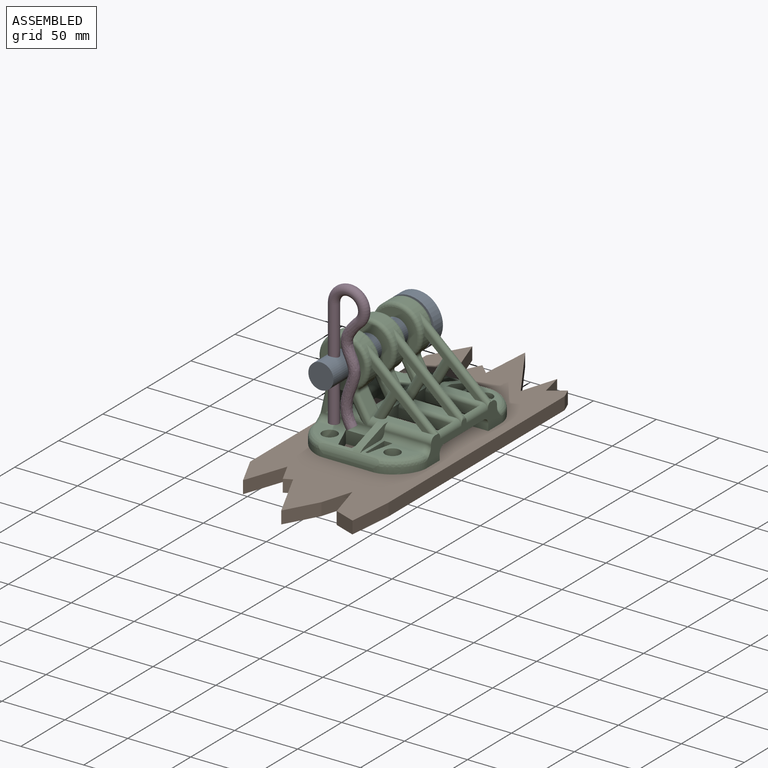
[diagram: assembled view]
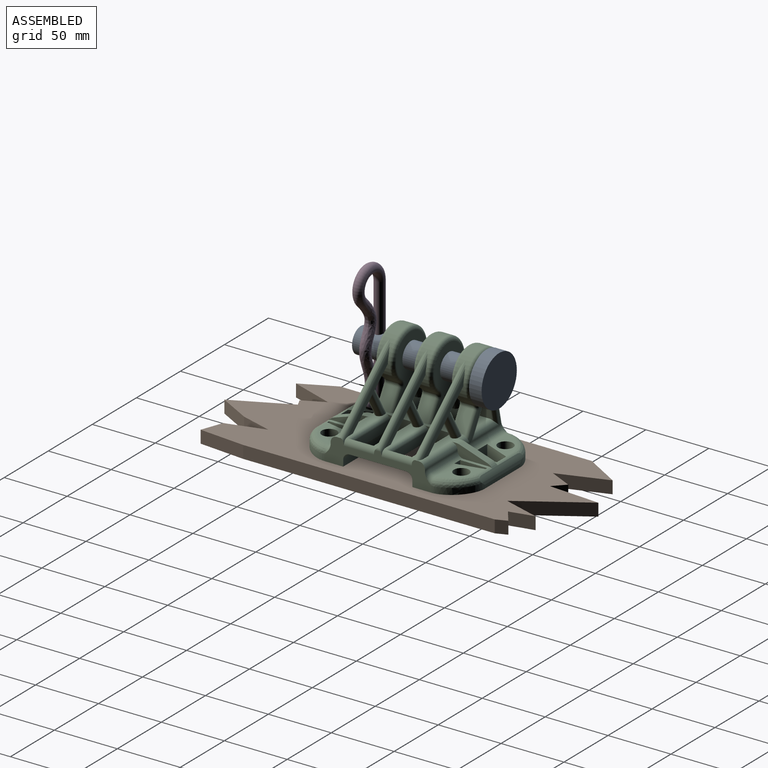
[diagram: assembled view, second angle]
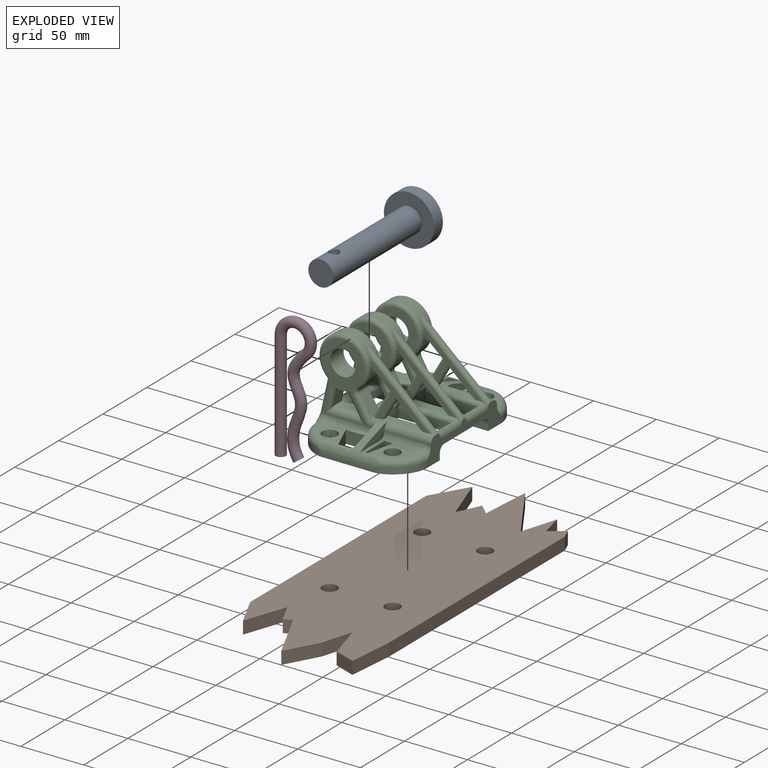
[diagram: exploded view]
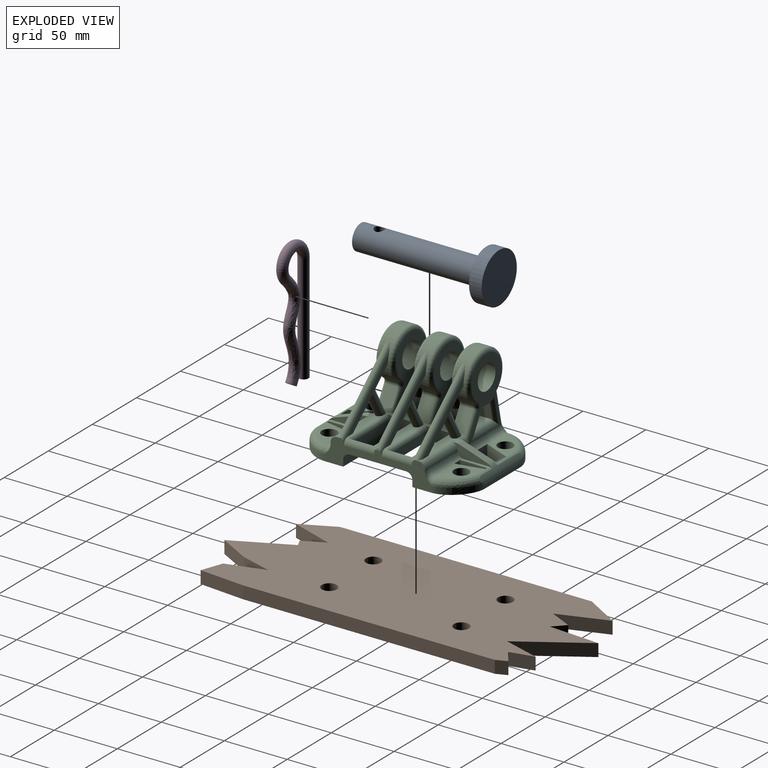
[diagram: exploded view, second angle]
ASSEMBLY  parts=4 mates=6
PART A: 6 faces, bbox 110x40x40 mm
  f0: plane 20x20mm, normal (1,0,0), area 314.2mm2, adj f1
  f1: cylinder r=10mm len=100mm, axis (1,0,0), area 6180.5mm2, adj f0,f2,f5
  f2: plane 40x40mm, normal (1,0,0), area 942.5mm2, adj f1,f3
  f3: cylinder r=20mm len=40mm, axis (1,0,0), area 1256.6mm2, adj f2,f4
  f4: plane 40x40mm, normal (-1,0,0), area 1256.6mm2, adj f3
  f5: cylinder r=4mm len=20mm, axis (0,-1,0), area 481.9mm2, adj f1
PART B: 28 faces, bbox 110x290.6x10 mm
  f0: plane 36.19x10mm, normal (1,-0.09,0), area 363.4mm2, adj f1,f21,f22,f23
  f1: plane 200x10mm, normal (1,0,0), area 2000mm2, adj f0,f2,f22,f23
  f2: plane 10x8.43mm, normal (0.93,0.37,0), area 90.6mm2, adj f1,f3,f22,f23
  f3: plane 11.59x10mm, normal (-0.59,0.81,0), area 143.3mm2, adj f2,f4,f22,f23
  f4: plane 18.94x10mm, normal (0.97,0.22,0), area 194.3mm2, adj f3,f5,f22,f23
  f5: plane 28.75x10mm, normal (-0.96,0.29,0), area 300.7mm2, adj f4,f6,f22,f23
  f6: plane 50.28x31.67mm, normal (0.85,0.53,0), area 594.2mm2, adj f5,f7,f22,f23
  f7: plane 40.47x10mm, normal (-1,0.07,0), area 405.7mm2, adj f6,f8,f22,f23
  f8: plane 10x8.71mm, normal (0.7,0.72,0), area 121.2mm2, adj f7,f9,f22,f23
  f9: plane 18.24x10mm, normal (-0.9,0.43,0), area 202.4mm2, adj f8,f10,f22,f23
  f10: plane 38.19x13.21mm, normal (0.95,0.33,0), area 404.1mm2, adj f9,f11,f22,f23
  f11: plane 28.38x16.69mm, normal (-0.86,0.51,0), area 329.2mm2, adj f10,f12,f22,f23
  f12: plane 200x10mm, normal (-1,0,0), area 2000mm2, adj f11,f13,f22,f23
  f13: plane 26.18x12.67mm, normal (-0.9,-0.44,0), area 290.8mm2, adj f12,f14,f22,f23
  f14: plane 33.68x11.65mm, normal (0.95,-0.33,0), area 356.4mm2, adj f13,f15,f22,f23
  f15: plane 16.94x10mm, normal (-0.9,-0.44,0), area 188.1mm2, adj f14,f16,f22,f23
  f16: plane 10x6.15mm, normal (0.44,-0.9,0), area 68.3mm2, adj f15,f17,f22,f23
  f17: plane 43.67x21.14mm, normal (-0.9,-0.44,0), area 485.1mm2, adj f16,f18,f22,f23
  f18: plane 25.59x14.14mm, normal (0.88,-0.48,0), area 292.4mm2, adj f17,f19,f22,f23
  f19: plane 24.54x10mm, normal (0.96,-0.29,0), area 256.2mm2, adj f18,f20,f22,f23
  f20: plane 30.02x10mm, normal (-0.96,-0.27,0), area 312mm2, adj f19,f21,f22,f23
  f21: plane 16.87x10mm, normal (-0.34,-0.94,0), area 179.6mm2, adj f0,f20,f22,f23
  f22: plane 290.6x110mm, normal (0,0,1), area 24919.5mm2, adj f0,f1,f2,f3,f4,f5,f6,f7
  f23: plane 290.6x110mm, normal (0,0,-1), area 24919.5mm2, adj f0,f1,f2,f3,f4,f5,f6,f7
  f24: cylinder r=6mm len=12mm, axis (0,0,1), area 377mm2, adj f22,f23
  f25: cylinder r=6mm len=12mm, axis (0,0,1), area 377mm2, adj f22,f23
  f26: cylinder r=6mm len=12mm, axis (0,0,1), area 377mm2, adj f22,f23
  f27: cylinder r=6mm len=12mm, axis (0,0,1), area 377mm2, adj f22,f23
PART C: 338 faces, bbox 138.5x112.8x80.6 mm
  f0: plane 92.61x42.61mm, normal (0,0,-1), area 2325mm2, adj f25,f39,f40,f41,f48,f49,f64,f65
  f1: plane 1.11x0.13mm, normal (-1,0,0), area 0mm2, adj f41,f137,f195
  f2: plane 46.35x40.82mm, normal (1,0,0), area 251.8mm2, adj f7,f14,f86,f89,f136,f190,f193,f196
  f3: plane 1.11x0.13mm, normal (-1,0,0), area 0mm2, adj f41,f136,f197
  f4: plane 46.35x40.82mm, normal (1,0,0), area 251.8mm2, adj f7,f13,f85,f90,f137,f189,f192,f197
  f5: plane 20x2.35mm, normal (0,0,1), area 47.1mm2, adj f46,f71,f110,f128
  f6: plane 28.9x20mm, normal (0,0,1), area 277mm2, adj f58,f79,f114,f115,f125
  f7: plane 75.22x55.66mm, normal (0,0,1), area 1086.1mm2, adj f2,f4,f16,f17,f27,f31,f45,f46
  f8: plane 21.54x7.51mm, normal (0,0,1), area 160.8mm2, adj f18,f22,f127,f134,f177,f178
  f9: plane 15.31x1.57mm, normal (0,0,1), area 23.7mm2, adj f101,f102,f130,f132,f177,f179
  f10: plane 15.31x1.57mm, normal (0,0,1), area 23.7mm2, adj f99,f100,f131,f132,f181,f183
  f11: plane 27.4x20mm, normal (0,0,1), area 285.4mm2, adj f49,f65,f108,f109,f122
  f12: plane 20x2.61mm, normal (0,0,1), area 52.2mm2, adj f55,f73,f112,f119
  f13: cylinder r=20mm len=40mm, axis (-1,0,0), area 814.7mm2, adj f4,f27,f85,f94,f161,f164,f168,f197
  f14: cylinder r=20mm len=40mm, axis (-1,0,0), area 814.7mm2, adj f2,f29,f86,f94,f141,f144,f147,f196
  f15: cylinder r=10mm len=20mm, axis (-1,0,0), area 942.5mm2, adj f36,f101
  f16: plane 15.89x9.36mm, normal (0,-0.87,0.5), area 157.8mm2, adj f7,f139,f142,f144,f145,f190
  f17: plane 15.14x9mm, normal (0,-0.87,0.5), area 157.4mm2, adj f7,f162,f164,f165
  f18: plane 16.56x9.05mm, normal (0,-0.98,-0.22), area 148.7mm2, adj f8,f20,f127,f177,f185
  f19: plane 16.52x9mm, normal (0,-0.98,-0.22), area 152.3mm2, adj f21,f132,f179,f183
  f20: cylinder r=20mm len=15.01mm, axis (1,0,0), area 157.3mm2, adj f18,f22,f36,f101,f177,f178,f185,f186
  f21: cylinder r=20mm len=15.01mm, axis (1,0,0), area 157.3mm2, adj f19,f23,f100,f102,f179,f180,f183,f184
  f22: plane 15.7x9.12mm, normal (0,0.87,-0.5), area 157.9mm2, adj f8,f20,f127,f178,f186
  f23: plane 15.35x9mm, normal (0,0.87,-0.5), area 159.6mm2, adj f21,f135,f180,f184
  f24: plane 90x45mm, normal (0,0,-1), area 2085.9mm2, adj f41,f61,f62,f63,f81,f82,f83,f94
  f25: plane 20.67x10.67mm, normal (0,1,0), area 142.9mm2, adj f0,f40,f94,f106,f117,f129,f149
  f26: plane 1.11x0.13mm, normal (1,0,0), area 0mm2, adj f41,f137,f197
  f27: plane 46.35x40.82mm, normal (-1,0,0), area 251.8mm2, adj f7,f13,f85,f90,f136,f189,f192,f197
  f28: plane 1.11x0.13mm, normal (1,0,0), area 0mm2, adj f41,f136,f196
  f29: plane 46.35x40.82mm, normal (-1,0,0), area 251.9mm2, adj f14,f86,f89,f121,f139,f190,f193,f196
  f30: plane 46.35x40.82mm, normal (1,0,0), area 251.9mm2, adj f43,f84,f87,f118,f138,f191,f194,f195
  f31: plane 46.35x40.82mm, normal (-1,0,0), area 251.8mm2, adj f7,f43,f84,f87,f137,f191,f194,f195
  f32: plane 21.54x7.51mm, normal (0,0,1), area 160.8mm2, adj f91,f93,f124,f133,f181,f182
  f33: plane 20x2.35mm, normal (0,0,1), area 47.1mm2, adj f56,f77,f115,f125
  f34: plane 92.61x42.61mm, normal (0,0,-1), area 2652mm2, adj f41,f42,f53,f54,f58,f59,f72,f73
  f35: plane 20x2.61mm, normal (0,0,1), area 52.2mm2, adj f45,f67,f108,f122
  f36: plane 57.03x44mm, normal (-1,0,0), area 724.9mm2, adj f15,f20,f46,f128,f129,f139,f145,f146
  f37: plane 28.9x20mm, normal (0,0,1), area 277mm2, adj f48,f69,f110,f111,f128
  f38: plane 5x1.34mm, normal (-1,0,0), area 2.2mm2, adj f41,f121,f123
  f39: plane 40x2.79mm, normal (-1,0,0), area 111.7mm2, adj f0,f106,f107,f201
  f40: plane 90x5mm, normal (1,0,0), area 450mm2, adj f0,f25,f41,f117
  f41: plane 86.86x21.86mm, normal (0,-1,0), area 775mm2, adj f0,f1,f3,f24,f26,f28,f34,f38
  f42: plane 20.67x10.67mm, normal (0,1,0), area 142.9mm2, adj f34,f54,f94,f104,f116,f126,f150
  f43: cylinder r=20mm len=40mm, axis (-1,0,0), area 814.7mm2, adj f30,f31,f87,f94,f152,f155,f159,f195
  f44: cylinder r=10mm len=20mm, axis (-1,0,0), area 942.5mm2, adj f50,f99
  f45: plane 32.64x10.75mm, normal (0,-1,0), area 147.5mm2, adj f7,f35,f47,f108,f121,f122,f201,f202
  f46: plane 32.14x10.75mm, normal (0,1,0), area 147.4mm2, adj f5,f7,f36,f47,f110,f128,f139,f201
  f47: plane 21.62x7.21mm, normal (-0.32,0,0.95), area 136.8mm2, adj f45,f46,f201,f202
  f48: cylinder r=6mm len=12mm, axis (0,0,1), area 377mm2, adj f0,f37
  f49: cylinder r=6mm len=12mm, axis (0,0,1), area 377mm2, adj f0,f11
  f50: plane 57.03x44mm, normal (1,0,0), area 724.9mm2, adj f44,f56,f92,f125,f126,f138,f151,f152
  f51: plane 5x1.34mm, normal (1,0,0), area 2.2mm2, adj f41,f118,f120
  f52: plane 27.4x20mm, normal (0,0,1), area 285.4mm2, adj f59,f75,f112,f113,f119
  f53: plane 40x2.79mm, normal (1,0,0), area 111.7mm2, adj f34,f104,f105,f200
  f54: plane 90x5mm, normal (-1,0,0), area 450mm2, adj f34,f41,f42,f116
  f55: plane 32.64x10.75mm, normal (0,-1,0), area 147.5mm2, adj f7,f12,f57,f112,f118,f119,f199,f200
  f56: plane 32.14x10.75mm, normal (0,1,0), area 147.4mm2, adj f7,f33,f50,f57,f115,f125,f138,f199
  f57: plane 21.62x7.21mm, normal (0.32,0,0.95), area 136.8mm2, adj f55,f56,f199,f200
  f58: cylinder r=6mm len=12mm, axis (0,0,1), area 377mm2, adj f6,f34
  f59: cylinder r=6mm len=12mm, axis (0,0,1), area 377mm2, adj f34,f52
  f60: plane 44.08x7.09mm, normal (1,0,0), area 311.6mm2, adj f61,f63,f117,f175,f176
  f61: plane 22.39x9.72mm, normal (0,1,0), area 162.3mm2, adj f24,f60,f62,f117,f136,f174,f176
  f62: plane 44.08x7mm, normal (-1,0,0), area 307.9mm2, adj f24,f61,f63,f173,f174
  f63: plane 22.39x10.09mm, normal (0,-1,0), area 167.8mm2, adj f7,f24,f60,f62,f117,f173,f175
  f64: plane 9.99x1.92mm, normal (1,0,0), area 19.1mm2, adj f0,f65,f67,f108
  f65: plane 21.34x10.1mm, normal (0.22,0.98,0), area 218.5mm2, adj f0,f11,f64,f66,f108,f122
  f66: plane 10.1x6.62mm, normal (-1,0,0), area 66.8mm2, adj f0,f65,f67,f122
  f67: plane 21.34x10.1mm, normal (0,-1,0), area 213.4mm2, adj f0,f35,f64,f66,f108,f122
  f68: plane 19.3x10.05mm, normal (-1,0,0), area 194mm2, adj f0,f69,f71,f128
  f69: plane 21.07x10.06mm, normal (0.38,-0.92,0), area 228mm2, adj f0,f37,f68,f70,f110,f128
  f70: plane 10.6x9.99mm, normal (1,0,0), area 105.9mm2, adj f0,f69,f71,f110
  f71: plane 21.07x10.05mm, normal (0,1,0), area 210.7mm2, adj f0,f5,f68,f70,f110,f128
  f72: plane 9.99x1.92mm, normal (-1,0,0), area 19.1mm2, adj f34,f73,f75,f112
  f73: plane 21.34x10.1mm, normal (0,-1,0), area 213.4mm2, adj f12,f34,f72,f74,f112,f119
  f74: plane 10.1x6.62mm, normal (1,0,0), area 66.8mm2, adj f34,f73,f75,f119
  f75: plane 21.34x10.1mm, normal (-0.22,0.98,0), area 218.5mm2, adj f34,f52,f72,f74,f112,f119
  f76: plane 19.3x10.05mm, normal (1,0,0), area 194mm2, adj f34,f77,f79,f125
  f77: plane 21.07x10.05mm, normal (0,1,0), area 210.7mm2, adj f33,f34,f76,f78,f115,f125
  f78: plane 10.6x9.99mm, normal (-1,0,0), area 105.9mm2, adj f34,f77,f79,f115
  f79: plane 21.07x10.06mm, normal (-0.38,-0.92,0), area 228mm2, adj f6,f34,f76,f78,f115,f125
  f80: plane 44.08x7.09mm, normal (-1,0,0), area 311.6mm2, adj f81,f83,f116,f171,f172
  f81: plane 22.39x10.09mm, normal (0,-1,0), area 167.8mm2, adj f7,f24,f80,f82,f116,f169,f171
  f82: plane 44.08x7mm, normal (1,0,0), area 307.9mm2, adj f24,f81,f83,f169,f170
  f83: plane 22.39x9.72mm, normal (0,1,0), area 162.3mm2, adj f24,f80,f82,f116,f137,f170,f172
  f84: plane 24.13x21.4mm, normal (0,0.66,-0.75), area 168.7mm2, adj f7,f30,f31,f118,f194
  f85: plane 16.9x15.03mm, normal (0,0.66,-0.75), area 111mm2, adj f4,f13,f27,f189
  f86: plane 15.69x13.82mm, normal (0,0.66,-0.75), area 111mm2, adj f2,f14,f29,f190
  f87: plane 15.69x13.82mm, normal (0,0.66,-0.75), area 111mm2, adj f30,f31,f43,f191
  f88: plane 15.89x9.36mm, normal (0,-0.87,0.5), area 157.8mm2, adj f7,f138,f153,f155,f156,f191
  f89: plane 24.13x21.4mm, normal (0,0.66,-0.75), area 168.7mm2, adj f2,f7,f29,f121,f193
  f90: plane 24.11x21.37mm, normal (0,0.66,-0.75), area 168.7mm2, adj f4,f7,f27,f192
  f91: plane 16.56x9.05mm, normal (0,-0.98,-0.22), area 148.7mm2, adj f32,f92,f124,f181,f187
  f92: cylinder r=20mm len=15.01mm, axis (1,0,0), area 157.3mm2, adj f50,f91,f93,f99,f181,f182,f187,f188
  f93: plane 15.7x9.12mm, normal (0,0.87,-0.5), area 157.9mm2, adj f32,f92,f124,f182,f188
  f94: plane 72.82x30.09mm, normal (0,0.98,0.22), area 1101mm2, adj f13,f14,f24,f25,f42,f43,f130,f131
  f95: plane 40x5mm, normal (0,1,0), area 200mm2, adj f24,f96,f98,f135
  f96: plane 15x5mm, normal (1,0,0), area 75mm2, adj f24,f95,f97,f134
  f97: plane 40x5mm, normal (0,-1,0), area 200mm2, adj f24,f96,f98,f132
  f98: plane 15x5mm, normal (-1,0,0), area 75mm2, adj f24,f95,f97,f133
  f99: plane 52.09x34mm, normal (-1,0,0), area 708.4mm2, adj f7,f10,f44,f92,f131,f156,f157,f158
  f100: plane 52.09x34mm, normal (1,0,0), area 708.4mm2, adj f7,f10,f21,f103,f131,f160,f161,f162
  f101: plane 52.09x34mm, normal (1,0,0), area 708.4mm2, adj f7,f9,f15,f20,f130,f140,f141,f142
  f102: plane 52.09x34mm, normal (-1,0,0), area 708.4mm2, adj f7,f9,f21,f103,f130,f165,f166,f167
  f103: cylinder r=10mm len=20mm, axis (-1,0,0), area 942.5mm2, adj f100,f102
  f104: bspline ~25x25mm, area 188.9mm2, adj f34,f42,f53,f114,f200
  f105: bspline ~25x25mm, area 188.9mm2, adj f34,f41,f53,f113,f200
  f106: bspline ~25x25mm, area 188.9mm2, adj f0,f25,f39,f111,f201
  f107: bspline ~25x25mm, area 188.9mm2, adj f0,f39,f41,f109,f201
  f108: cylinder r=5mm len=12mm, axis (0,1,0), area 32.7mm2, adj f11,f35,f45,f64,f65,f67,f109,f201
  f109: bspline ~31.33x31.33mm, area 261.9mm2, adj f11,f107,f108,f123,f201
  f110: cylinder r=5mm len=22mm, axis (0,1,0), area 57.5mm2, adj f5,f37,f46,f69,f70,f71,f111,f201
  f111: bspline ~31.33x31.33mm, area 259.9mm2, adj f37,f106,f110,f129,f201
  f112: cylinder r=5mm len=12mm, axis (0,1,0), area 32.7mm2, adj f12,f52,f55,f72,f73,f75,f113,f200
  f113: bspline ~31.33x31.33mm, area 259.9mm2, adj f52,f105,f112,f120,f200
  f114: bspline ~31.33x27mm, area 261.9mm2, adj f6,f104,f115,f126,f200
  f115: cylinder r=5mm len=22mm, axis (0,1,0), area 57.5mm2, adj f6,f33,f56,f77,f78,f79,f114,f200
  f116: cylinder r=5mm len=90mm, axis (0,-1,0), area 666.2mm2, adj f24,f41,f42,f54,f80,f81,f83
  f117: cylinder r=5mm len=90mm, axis (0,-1,0), area 666.2mm2, adj f24,f25,f40,f41,f60,f61,f63
  f118: cylinder r=5mm len=37mm, axis (0,1,0), area 288.2mm2, adj f7,f30,f41,f51,f55,f84,f119,f195
  f119: cylinder r=5mm len=32mm, axis (0,-1,0), area 244.8mm2, adj f12,f52,f55,f73,f74,f75,f118,f120
  f120: torus R=10mm, axis (1,0,0), area 52.5mm2, adj f41,f51,f113,f119
  f121: cylinder r=5mm len=37mm, axis (0,1,0), area 288.2mm2, adj f7,f29,f38,f41,f45,f89,f122,f196
  f122: cylinder r=5mm len=32mm, axis (0,-1,0), area 244.8mm2, adj f11,f35,f45,f65,f66,f67,f121,f123
  f123: torus R=10mm, axis (-1,0,0), area 52.5mm2, adj f38,f41,f109,f122
  f124: cylinder r=5mm len=31.97mm, axis (0,-1,0), area 200.2mm2, adj f32,f91,f93,f125,f187,f188
  f125: cylinder r=5mm len=42mm, axis (0,-1,0), area 315.7mm2, adj f6,f33,f50,f56,f76,f77,f79,f124
  f126: torus R=10mm, axis (1,0,0), area 31.5mm2, adj f42,f50,f114,f125,f150
  f127: cylinder r=5mm len=31.97mm, axis (0,1,0), area 200.2mm2, adj f8,f18,f22,f128,f185,f186
  f128: cylinder r=5mm len=42mm, axis (0,-1,0), area 315.7mm2, adj f5,f36,f37,f46,f68,f69,f71,f127
  f129: torus R=10mm, axis (-1,0,0), area 31.5mm2, adj f25,f36,f111,f128,f149
  f130: cylinder r=5mm len=21mm, axis (1,0,0), area 114.5mm2, adj f9,f94,f101,f102,f140,f166
  f131: cylinder r=5mm len=21mm, axis (-1,0,0), area 114.5mm2, adj f10,f94,f99,f100,f157,f160
  f132: cylinder r=5mm len=47.24mm, axis (1,0,0), area 321.9mm2, adj f9,f10,f19,f97,f133,f134,f177,f179
  f133: cylinder r=5mm len=22.66mm, axis (0,-1,0), area 144.2mm2, adj f32,f98,f132,f135,f181,f182
  f134: cylinder r=5mm len=22.66mm, axis (0,1,0), area 144.2mm2, adj f8,f96,f132,f135,f177,f178
  f135: cylinder r=5mm len=48.07mm, axis (-1,0,0), area 325.1mm2, adj f7,f23,f95,f133,f134,f178,f180,f182
  f136: cylinder r=5mm len=24mm, axis (1,0,0), area 145.4mm2, adj f2,f3,f7,f27,f28,f41,f61,f174
  f137: cylinder r=5mm len=24mm, axis (1,0,0), area 145.4mm2, adj f1,f4,f7,f26,f31,f41,f83,f170
  f138: cylinder r=5mm len=7.59mm, axis (0,1,0), area 55.5mm2, adj f7,f30,f50,f56,f88,f153,f191
  f139: cylinder r=5mm len=7.59mm, axis (0,1,0), area 55.5mm2, adj f7,f16,f29,f36,f46,f145,f190
  f140: cylinder r=3mm len=26.47mm, axis (0,0.22,-0.98), area 109.5mm2, adj f94,f101,f130,f141
  f141: torus R=17mm, axis (-1,0,0), area 441.6mm2, adj f14,f101,f140,f143
  f142: cylinder r=3mm len=16.64mm, axis (0,0.5,0.87), area 78.3mm2, adj f7,f16,f101,f143
  f143: torus R=6mm, axis (-1,0,0), area 27.9mm2, adj f101,f141,f142,f144
  f144: cylinder r=3mm len=9mm, axis (-1,0,0), area 39.1mm2, adj f14,f16,f143,f146
  f145: cylinder r=3mm len=20.12mm, axis (0,0.5,0.87), area 92.9mm2, adj f16,f36,f139,f146
  f146: torus R=6mm, axis (-1,0,0), area 27.9mm2, adj f36,f144,f145,f147
  f147: torus R=17mm, axis (-1,0,0), area 441.6mm2, adj f14,f36,f146,f148
  f148: cylinder r=3mm len=26.94mm, axis (0,0.22,-0.98), area 122.5mm2, adj f36,f94,f147,f149
  f149: bspline ~10.31x5.54mm, area 26.7mm2, adj f25,f94,f129,f148
  f150: bspline ~10.31x5.54mm, area 26.7mm2, adj f42,f94,f126,f151
  f151: cylinder r=3mm len=26.94mm, axis (0,-0.22,0.98), area 122.5mm2, adj f50,f94,f150,f152
  f152: torus R=17mm, axis (1,0,0), area 441.6mm2, adj f43,f50,f151,f154
  f153: cylinder r=3mm len=20.12mm, axis (0,-0.5,-0.87), area 92.9mm2, adj f50,f88,f138,f154
  f154: torus R=6mm, axis (1,0,0), area 27.9mm2, adj f50,f152,f153,f155
  f155: cylinder r=3mm len=9mm, axis (-1,0,0), area 39.1mm2, adj f43,f88,f154,f158
  f156: cylinder r=3mm len=16.64mm, axis (0,-0.5,-0.87), area 78.3mm2, adj f7,f88,f99,f158
  f157: cylinder r=3mm len=26.47mm, axis (0,-0.22,0.98), area 109.5mm2, adj f94,f99,f131,f159
  f158: torus R=6mm, axis (1,0,0), area 27.9mm2, adj f99,f155,f156,f159
  f159: torus R=17mm, axis (1,0,0), area 441.6mm2, adj f43,f99,f157,f158
  f160: cylinder r=3mm len=26.47mm, axis (0,0.22,-0.98), area 109.5mm2, adj f94,f100,f131,f161
  f161: torus R=17mm, axis (1,0,0), area 441.6mm2, adj f13,f100,f160,f163
  f162: cylinder r=3mm len=16.64mm, axis (0,0.5,0.87), area 78.3mm2, adj f7,f17,f100,f163
  f163: torus R=6mm, axis (1,0,0), area 27.9mm2, adj f100,f161,f162,f164
  f164: cylinder r=3mm len=9mm, axis (-1,0,0), area 39.1mm2, adj f13,f17,f163,f167
  f165: cylinder r=3mm len=16.64mm, axis (0,-0.5,-0.87), area 78.3mm2, adj f7,f17,f102,f167
  f166: cylinder r=3mm len=26.47mm, axis (0,-0.22,0.98), area 109.5mm2, adj f94,f102,f130,f168
  f167: torus R=6mm, axis (1,0,0), area 27.9mm2, adj f102,f164,f165,f168
  f168: torus R=17mm, axis (1,0,0), area 441.6mm2, adj f13,f102,f166,f167
  f169: cylinder r=3mm len=42.2mm, axis (0,1,0), area 198.9mm2, adj f7,f81,f82,f170
  f170: torus R=2mm, axis (-1,0,0), area 9.4mm2, adj f82,f83,f137,f169
  f171: cylinder r=3mm len=42.2mm, axis (0,-1,0), area 198.9mm2, adj f7,f80,f81,f172
  f172: torus R=2mm, axis (-1,0,0), area 9.4mm2, adj f80,f83,f137,f171
  f173: cylinder r=3mm len=42.2mm, axis (0,-1,0), area 198.9mm2, adj f7,f62,f63,f174
  f174: torus R=2mm, axis (-1,0,0), area 9.4mm2, adj f61,f62,f136,f173
  f175: cylinder r=3mm len=42.2mm, axis (0,1,0), area 198.9mm2, adj f7,f60,f63,f176
  f176: torus R=2mm, axis (-1,0,0), area 9.4mm2, adj f60,f61,f136,f175
  f177: cylinder r=3mm len=17.96mm, axis (0,-0.22,0.98), area 80.6mm2, adj f8,f9,f18,f20,f101,f132,f134
  f178: cylinder r=3mm len=18.17mm, axis (0,-0.5,-0.87), area 83.4mm2, adj f7,f8,f20,f22,f101,f134,f135
  f179: cylinder r=3mm len=17.96mm, axis (0,0.22,-0.98), area 81.3mm2, adj f9,f19,f21,f102,f132
  f180: cylinder r=3mm len=18.17mm, axis (0,0.5,0.87), area 83.9mm2, adj f7,f21,f23,f102,f135
  f181: cylinder r=3mm len=17.96mm, axis (0,0.22,-0.98), area 80.6mm2, adj f10,f32,f91,f92,f99,f132,f133
  f182: cylinder r=3mm len=18.17mm, axis (0,0.5,0.87), area 83.4mm2, adj f7,f32,f92,f93,f99,f133,f135
  f183: cylinder r=3mm len=17.96mm, axis (0,-0.22,0.98), area 81.3mm2, adj f10,f19,f21,f100,f132
  f184: cylinder r=3mm len=18.17mm, axis (0,-0.5,-0.87), area 83.9mm2, adj f7,f21,f23,f100,f135
  f185: cylinder r=3mm len=22.96mm, axis (0,-0.22,0.98), area 93.7mm2, adj f18,f20,f36,f127
  f186: cylinder r=3mm len=23.17mm, axis (0,-0.5,-0.87), area 99mm2, adj f20,f22,f36,f127
  f187: cylinder r=3mm len=22.96mm, axis (0,0.22,-0.98), area 93.7mm2, adj f50,f91,f92,f124
  f188: cylinder r=3mm len=23.17mm, axis (0,0.5,0.87), area 99mm2, adj f50,f92,f93,f124
  f189: cylinder r=3mm len=24.18mm, axis (0,0.5,-0.87), area 238.7mm2, adj f4,f7,f27,f85
  f190: cylinder r=3mm len=24.8mm, axis (0,0.5,-0.87), area 243.5mm2, adj f2,f7,f16,f29,f86,f139
  f191: cylinder r=3mm len=24.8mm, axis (0,0.5,-0.87), area 243.5mm2, adj f7,f30,f31,f87,f88,f138
  f192: cylinder r=3mm len=21.67mm, axis (0,-0.5,0.87), area 219.5mm2, adj f4,f7,f27,f90
  f193: cylinder r=3mm len=21.67mm, axis (0,-0.5,0.87), area 219.5mm2, adj f2,f7,f29,f89
  f194: cylinder r=3mm len=21.67mm, axis (0,-0.5,0.87), area 219.5mm2, adj f7,f30,f31,f84
  f195: cylinder r=3mm len=60.75mm, axis (0,-0.75,-0.66), area 655mm2, adj f1,f30,f31,f41,f43,f118,f137
  f196: cylinder r=3mm len=60.75mm, axis (0,-0.75,-0.66), area 655mm2, adj f2,f14,f28,f29,f41,f121,f136
  f197: cylinder r=3mm len=60.75mm, axis (0,0.75,0.66), area 659mm2, adj f3,f4,f13,f26,f27,f41,f136,f137
  f198: cylinder r=3mm len=4.5mm, axis (1,0,0), area 5.7mm2, adj f41,f197
  f199: cylinder r=10mm len=6mm, axis (0,1,0), area 19.3mm2, adj f7,f55,f56,f57
  f200: cylinder r=10mm len=47.98mm, axis (0,1,0), area 352.2mm2, adj f53,f55,f56,f57,f104,f105,f112,f113
  f201: cylinder r=10mm len=47.98mm, axis (0,1,0), area 352.2mm2, adj f39,f45,f46,f47,f106,f107,f108,f109
  f202: cylinder r=10mm len=6mm, axis (0,1,0), area 19.3mm2, adj f7,f45,f46,f47
  f203: plane 1.99x1mm, normal (1,0,0), area 2mm2, adj f0,f204,f221,f222
  f204: plane 8x2.63mm, normal (0.31,-0.95,0), area 8.4mm2, adj f0,f203,f205,f222
  f205: plane 1x0.06mm, normal (1,0,0), area 0.1mm2, adj f0,f204,f206,f222
  f206: extruded ~2.38x1mm, area 2.4mm2, adj f0,f205,f207,f222
  f207: extruded ~1x0.79mm, area 0.8mm2, adj f0,f206,f208,f222
  f208: plane 4.84x1mm, normal (0,1,0), area 4.8mm2, adj f0,f207,f209,f222
  f209: plane 2.02x1mm, normal (1,0,0), area 2mm2, adj f0,f208,f210,f222
  f210: plane 10.22x1mm, normal (0,-1,0), area 10.2mm2, adj f0,f209,f211,f222
  f211: plane 2.95x1mm, normal (-1,0,0), area 2.9mm2, adj f0,f210,f212,f222
  f212: plane 7.82x2.57mm, normal (-0.31,0.95,0), area 8.2mm2, adj f0,f211,f213,f222
  f213: plane 1x0.04mm, normal (-1,0,0), area 0mm2, adj f0,f212,f214,f222
  f214: plane 7.82x2.42mm, normal (-0.3,-0.96,0), area 8.2mm2, adj f0,f213,f215,f222
  f215: plane 2.95x1mm, normal (-1,0,0), area 3mm2, adj f0,f214,f216,f222
  f216: plane 10.22x1mm, normal (0,1,0), area 10.2mm2, adj f0,f215,f217,f222
  f217: plane 1.94x1mm, normal (1,0,0), area 1.9mm2, adj f0,f216,f218,f222
  f218: plane 4.75x1mm, normal (0,-1,0), area 4.8mm2, adj f0,f217,f219,f222
  f219: extruded ~3.26x1mm, area 3.3mm2, adj f0,f218,f220,f222
  f220: plane 1x0.06mm, normal (1,0,0), area 0.1mm2, adj f0,f219,f221,f222
  f221: plane 8.02x2.46mm, normal (0.29,0.96,0), area 8.4mm2, adj f0,f203,f220,f222
  f222: plane 10.92x10.22mm, normal (0,0,-1), area 72mm2, adj f203,f204,f205,f206,f207,f208,f209,f210
  f223: extruded ~1.79x1mm, area 2.1mm2, adj f0,f224,f249,f250
  f224: extruded ~2.51x1mm, area 2.6mm2, adj f0,f223,f225,f250
  f225: extruded ~3.34x1.01mm, area 3.5mm2, adj f0,f224,f226,f250
  f226: plane 1.49x1mm, normal (0.56,0.83,0), area 1.8mm2, adj f0,f225,f227,f250
  f227: extruded ~1.16x1mm, area 1.3mm2, adj f0,f226,f228,f250
  f228: extruded ~1.02x1mm, area 1mm2, adj f0,f227,f229,f250
  f229: extruded ~1.45x1.16mm, area 2.1mm2, adj f0,f228,f230,f250
  f230: extruded ~1.06x1mm, area 1.3mm2, adj f0,f229,f231,f250
  f231: extruded ~1.74x1mm, area 1.8mm2, adj f0,f230,f232,f250
  f232: plane 1x0.79mm, normal (-1,0,0), area 0.8mm2, adj f0,f231,f233,f250
  f233: plane 1.66x1mm, normal (0,1,0), area 1.7mm2, adj f0,f232,f234,f250
  f234: plane 1x0.78mm, normal (1,0,0), area 0.8mm2, adj f0,f233,f235,f250
  f235: extruded ~1.87x1mm, area 1.9mm2, adj f0,f234,f236,f250
  f236: extruded ~1.02x1mm, area 1.2mm2, adj f0,f235,f237,f250
  f237: extruded ~1.17x1mm, area 1.3mm2, adj f0,f236,f238,f250
  f238: extruded ~1.58x1mm, area 1.6mm2, adj f0,f237,f239,f250
  f239: extruded ~1.41x1mm, area 1.4mm2, adj f0,f238,f240,f250
  f240: extruded ~1.31x1mm, area 1.4mm2, adj f0,f239,f241,f250
  f241: plane 1.84x1mm, normal (0,1,0), area 1.8mm2, adj f0,f240,f242,f250
  f242: extruded ~2.95x1mm, area 3mm2, adj f0,f241,f243,f250
  f243: extruded ~3.05x1mm, area 3.2mm2, adj f0,f242,f244,f250
  f244: extruded ~2.3x1.07mm, area 2.6mm2, adj f0,f243,f245,f250
  f245: extruded ~1.61x1mm, area 1.8mm2, adj f0,f244,f246,f250
  f246: extruded ~1.87x1mm, area 2.1mm2, adj f0,f245,f247,f250
  f247: plane 1x0.04mm, normal (0,-1,0), area 0mm2, adj f0,f246,f248,f250
  f248: extruded ~1.63x1mm, area 1.9mm2, adj f0,f247,f249,f250
  f249: extruded ~1.63x1mm, area 1.8mm2, adj f0,f223,f248,f250
  f250: plane 10.51x7.07mm, normal (0,0,-1), area 39.5mm2, adj f223,f224,f225,f226,f227,f228,f229,f230
  f251: extruded ~1.79x1mm, area 2.1mm2, adj f0,f252,f277,f278
  f252: extruded ~2.51x1mm, area 2.6mm2, adj f0,f251,f253,f278
  f253: extruded ~3.34x1.01mm, area 3.5mm2, adj f0,f252,f254,f278
  f254: plane 1.49x1mm, normal (0.56,0.83,0), area 1.8mm2, adj f0,f253,f255,f278
  f255: extruded ~1.16x1mm, area 1.3mm2, adj f0,f254,f256,f278
  f256: extruded ~1.02x1mm, area 1mm2, adj f0,f255,f257,f278
  f257: extruded ~1.45x1.16mm, area 2.1mm2, adj f0,f256,f258,f278
  f258: extruded ~1.06x1mm, area 1.3mm2, adj f0,f257,f259,f278
  f259: extruded ~1.74x1mm, area 1.8mm2, adj f0,f258,f260,f278
  f260: plane 1x0.79mm, normal (-1,0,0), area 0.8mm2, adj f0,f259,f261,f278
  f261: plane 1.66x1mm, normal (0,1,0), area 1.7mm2, adj f0,f260,f262,f278
  f262: plane 1x0.78mm, normal (1,0,0), area 0.8mm2, adj f0,f261,f263,f278
  f263: extruded ~1.87x1mm, area 1.9mm2, adj f0,f262,f264,f278
  f264: extruded ~1.02x1mm, area 1.2mm2, adj f0,f263,f265,f278
  f265: extruded ~1.17x1mm, area 1.3mm2, adj f0,f264,f266,f278
  f266: extruded ~1.58x1mm, area 1.6mm2, adj f0,f265,f267,f278
  f267: extruded ~1.41x1mm, area 1.4mm2, adj f0,f266,f268,f278
  f268: extruded ~1.31x1mm, area 1.4mm2, adj f0,f267,f269,f278
  f269: plane 1.84x1mm, normal (0,1,0), area 1.8mm2, adj f0,f268,f270,f278
  f270: extruded ~2.95x1mm, area 3mm2, adj f0,f269,f271,f278
  f271: extruded ~3.05x1mm, area 3.2mm2, adj f0,f270,f272,f278
  f272: extruded ~2.3x1.07mm, area 2.6mm2, adj f0,f271,f273,f278
  f273: extruded ~1.61x1mm, area 1.8mm2, adj f0,f272,f274,f278
  f274: extruded ~1.87x1mm, area 2.1mm2, adj f0,f273,f275,f278
  f275: plane 1x0.04mm, normal (0,-1,0), area 0mm2, adj f0,f274,f276,f278
  f276: extruded ~1.63x1mm, area 1.9mm2, adj f0,f275,f277,f278
  f277: extruded ~1.63x1mm, area 1.8mm2, adj f0,f251,f276,f278
  f278: plane 10.51x7.07mm, normal (0,0,-1), area 39.5mm2, adj f251,f252,f253,f254,f255,f256,f257,f258
  f279: extruded ~1.06x1mm, area 1.1mm2, adj f0,f280,f298,f299
  f280: plane 1x0.24mm, normal (-0.98,0.2,0), area 0.2mm2, adj f0,f279,f281,f299
  f281: plane 2.01x1mm, normal (0.09,-1,0), area 2mm2, adj f0,f280,f282,f299
  f282: plane 3.65x1mm, normal (1,0,0), area 3.6mm2, adj f0,f281,f283,f299
  f283: plane 1.83x1mm, normal (0,-1,0), area 1.8mm2, adj f0,f282,f284,f299
  f284: plane 5.54x1mm, normal (-1,0,0), area 5.5mm2, adj f0,f283,f285,f299
  f285: plane 5.21x1mm, normal (-0.07,1,0), area 5.2mm2, adj f0,f284,f286,f299
  f286: plane 1x0.86mm, normal (0.88,0.47,0), area 1mm2, adj f0,f285,f287,f299
  f287: extruded ~1x0.73mm, area 0.7mm2, adj f0,f286,f288,f299
  f288: extruded ~1x0.82mm, area 0.8mm2, adj f0,f287,f289,f299
  f289: extruded ~2.05x1.55mm, area 2.9mm2, adj f0,f288,f290,f299
  f290: extruded ~1.98x1.62mm, area 2.9mm2, adj f0,f289,f291,f299
  f291: extruded ~1.39x1mm, area 1.4mm2, adj f0,f290,f292,f299
  f292: extruded ~1.29x1mm, area 1.4mm2, adj f0,f291,f293,f299
  f293: plane 1.87x1mm, normal (0,1,0), area 1.9mm2, adj f0,f292,f294,f299
  f294: extruded ~2.75x1mm, area 2.8mm2, adj f0,f293,f295,f299
  f295: extruded ~3.02x1mm, area 3.2mm2, adj f0,f294,f296,f299
  f296: extruded ~2.63x1.06mm, area 2.9mm2, adj f0,f295,f297,f299
  f297: extruded ~2.28x1mm, area 2.5mm2, adj f0,f296,f298,f299
  f298: extruded ~2.36x1mm, area 2.6mm2, adj f0,f279,f297,f299
  f299: plane 10.36x6.83mm, normal (0,0,-1), area 41.2mm2, adj f279,f280,f281,f282,f283,f284,f285,f286
  f300: extruded ~3.93x1mm, area 4.1mm2, adj f0,f301,f315,f316
  f301: extruded ~2.67x1.34mm, area 3.1mm2, adj f0,f300,f302,f316
  f302: extruded ~2.69x1.28mm, area 3.1mm2, adj f0,f301,f303,f316
  f303: extruded ~3.99x1mm, area 4.1mm2, adj f0,f302,f304,f316
  f304: extruded ~3.92x1mm, area 4.1mm2, adj f0,f303,f305,f316
  f305: extruded ~2.67x1.33mm, area 3.1mm2, adj f0,f304,f306,f316
  f306: extruded ~2.7x1.29mm, area 3.1mm2, adj f0,f305,f315,f316
  f307: extruded ~2.7x1mm, area 2.7mm2, adj f308,f314,f316,f317
  f308: extruded ~1.09x1mm, area 1.5mm2, adj f307,f309,f316,f317
  f309: extruded ~1.09x1mm, area 1.5mm2, adj f308,f310,f316,f317
  f310: extruded ~2.7x1mm, area 2.7mm2, adj f309,f311,f316,f317
  f311: extruded ~2.68x1mm, area 2.7mm2, adj f310,f312,f316,f317
  f312: extruded ~1.09x1mm, area 1.5mm2, adj f311,f313,f316,f317
  f313: extruded ~1.09x1mm, area 1.5mm2, adj f312,f314,f316,f317
  f314: extruded ~2.69x1mm, area 2.7mm2, adj f307,f313,f316,f317
  f315: extruded ~3.96x1mm, area 4.1mm2, adj f0,f300,f306,f316
  f316: plane 10.52x7.14mm, normal (0,0,-1), area 45.7mm2, adj f300,f301,f302,f303,f304,f305,f306,f307
  f317: plane 7.03x2.85mm, normal (0,0,-1), area 17mm2, adj f307,f308,f309,f310,f311,f312,f313,f314
  f318: plane 1.99x1mm, normal (1,0,0), area 2mm2, adj f0,f319,f336,f337
  f319: plane 8x2.63mm, normal (0.31,-0.95,0), area 8.4mm2, adj f0,f318,f320,f337
  f320: plane 1x0.06mm, normal (1,0,0), area 0.1mm2, adj f0,f319,f321,f337
  f321: extruded ~2.38x1mm, area 2.4mm2, adj f0,f320,f322,f337
  f322: extruded ~1x0.79mm, area 0.8mm2, adj f0,f321,f323,f337
  f323: plane 4.84x1mm, normal (0,1,0), area 4.8mm2, adj f0,f322,f324,f337
  f324: plane 2.02x1mm, normal (1,0,0), area 2mm2, adj f0,f323,f325,f337
  f325: plane 10.22x1mm, normal (0,-1,0), area 10.2mm2, adj f0,f324,f326,f337
  f326: plane 2.95x1mm, normal (-1,0,0), area 2.9mm2, adj f0,f325,f327,f337
  f327: plane 7.82x2.57mm, normal (-0.31,0.95,0), area 8.2mm2, adj f0,f326,f328,f337
  f328: plane 1x0.04mm, normal (-1,0,0), area 0mm2, adj f0,f327,f329,f337
  f329: plane 7.82x2.42mm, normal (-0.3,-0.96,0), area 8.2mm2, adj f0,f328,f330,f337
  f330: plane 2.95x1mm, normal (-1,0,0), area 3mm2, adj f0,f329,f331,f337
  f331: plane 10.22x1mm, normal (0,1,0), area 10.2mm2, adj f0,f330,f332,f337
  f332: plane 1.94x1mm, normal (1,0,0), area 1.9mm2, adj f0,f331,f333,f337
  f333: plane 4.75x1mm, normal (0,-1,0), area 4.8mm2, adj f0,f332,f334,f337
  f334: extruded ~3.26x1mm, area 3.3mm2, adj f0,f333,f335,f337
  f335: plane 1x0.06mm, normal (1,0,0), area 0.1mm2, adj f0,f334,f336,f337
  f336: plane 8.02x2.46mm, normal (0.29,0.96,0), area 8.4mm2, adj f0,f318,f335,f337
  f337: plane 10.92x10.22mm, normal (0,0,-1), area 72mm2, adj f318,f319,f320,f321,f322,f323,f324,f325
PART D: 5 faces, bbox 105.7x34.6x16 mm
  f0: plane 8x8mm, normal (1,0,0), area 50.3mm2, adj f2
  f1: plane 8x6.74mm, normal (0.84,0.54,0), area 50.3mm2, adj f4
  f2: cylinder r=4mm len=86.24mm, axis (-1,0,0), area 2167.4mm2, adj f0,f3
  f3: torus R=12mm, axis (0,0,-1), area 1174.6mm2, adj f2,f4
  f4: bspline ~82.92x18.03mm, area 2121.3mm2, adj f1,f3
PLACE A rot(axis=(0.58,-0.58,-0.58),120deg) t=(-56.71,-36.26,62.98)mm
PLACE B t=(-31.71,-8.68,-2.02)mm
PLACE C rot(axis=(0,0,1),90deg) t=(-76.71,-8.68,7.98)mm
PLACE D rot(axis=(0.58,0.58,-0.58),120deg) t=(-56.71,-56.26,64.33)mm
MATE slider A.f1 <-> C.f13  axis (0,-1,0) through (-56.71,-21.18,62.98)mm
MATE planar A.f1 <-> C.f50  axis (0,-1,0) through (-56.71,28.82,62.98)mm
MATE cylindrical C.f49 <-> B.f27  axis (0,0,1) through (-6.71,-61.18,17.98)mm
MATE slider D.f2 <-> A.f5  axis (0,0,1) through (-56.71,-56.26,67.28)mm
MATE planar C.f34 <-> B.f22  axis (0,0,-1) through (-32.06,33.09,7.98)mm
MATE cylindrical C.f59 <-> B.f26  axis (0,0,1) through (-6.71,43.82,17.98)mm
